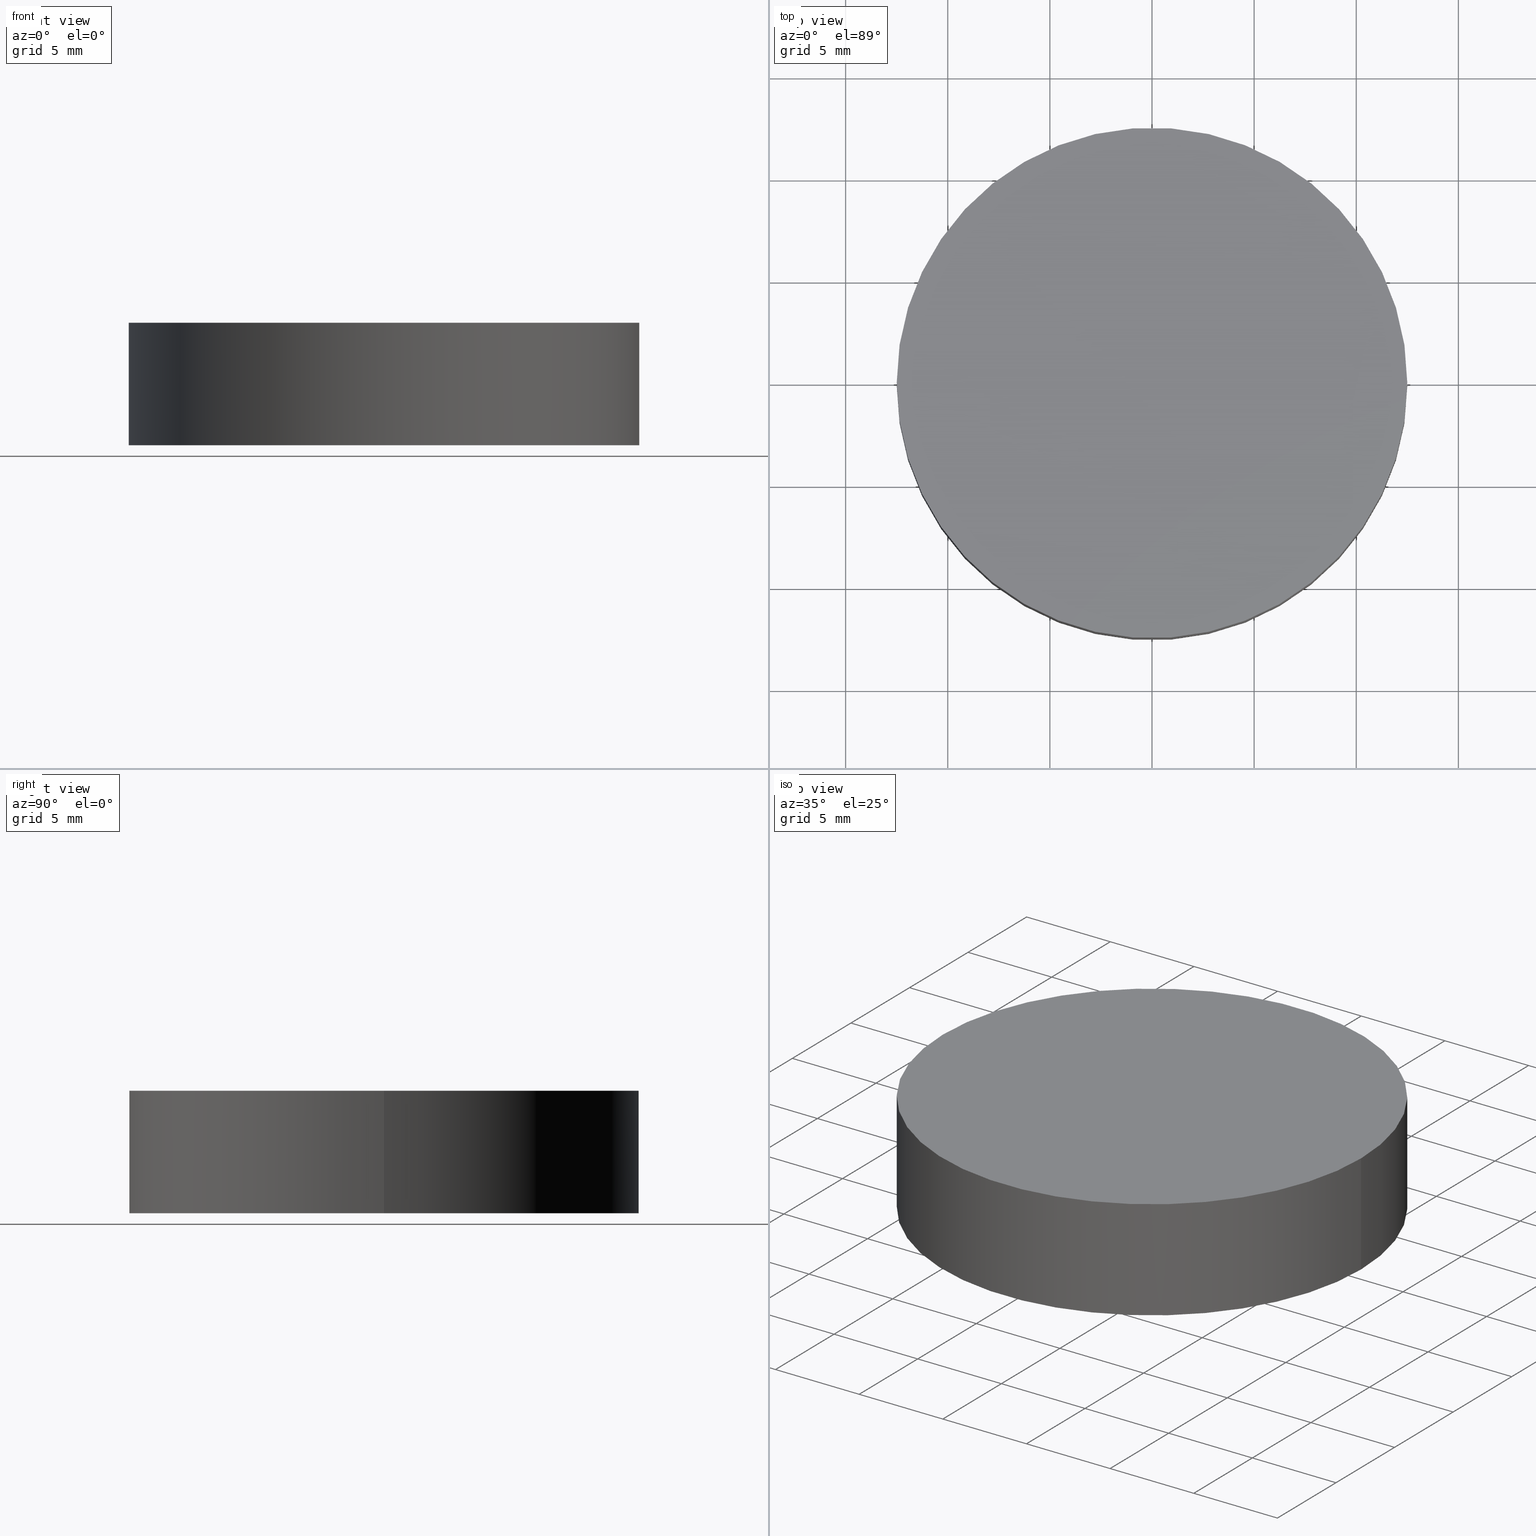
[diagram: canonical four-view strip — front | top / right | iso, engineering-drawing reading convention]
A machine part, canonical four-view strip (front | top / right | iso — engineering-drawing reading convention). The complete STEP part file that produces these views, byte-faithful:
ISO-10303-21;
HEADER;
FILE_DESCRIPTION (( 'STEP AP214' ),
    '1' );
FILE_NAME ('185005.STEP',
    '2019-07-12T01:39:51',
    ( 'user' ),
    ( '΢���й�' ),
    'SwSTEP 2.0',
    'SolidWorks 2016',
    '' );
FILE_SCHEMA (( 'AUTOMOTIVE_DESIGN' ));
ENDSEC;

DATA;
#1 = SURFACE_STYLE_USAGE ( .BOTH. , #75 ) ;
#2 = ORIENTED_EDGE ( 'NONE', *, *, #48, .T. ) ;
#3 = VERTEX_POINT ( 'NONE', #18 ) ;
#4 = DIRECTION ( 'NONE',  ( 0.0000000000000000000, 0.0000000000000000000, 1.000000000000000000 ) ) ;
#5 = CARTESIAN_POINT ( 'NONE',  ( -12.50000000000000000, 0.0000000000000000000, 6.000000000000000000 ) ) ;
#6 = DIRECTION ( 'NONE',  ( 1.000000000000000000, 0.0000000000000000000, 0.0000000000000000000 ) ) ;
#7 =( NAMED_UNIT ( * ) PLANE_ANGLE_UNIT ( ) SI_UNIT ( $, .RADIAN. ) );
#8 = COLOUR_RGB ( '',1.000000000000000000, 1.000000000000000000, 1.000000000000000000 ) ;
#9 = ORIENTED_EDGE ( 'NONE', *, *, #71, .F. ) ;
#10 = AXIS2_PLACEMENT_3D ( 'NONE', #25, #122, #109 ) ;
#11 = VECTOR ( 'NONE', #77, 1000.000000000000000 ) ;
#12 = STYLED_ITEM ( 'NONE', ( #53 ), #28 ) ;
#13 = ORIENTED_EDGE ( 'NONE', *, *, #71, .T. ) ;
#14 = FILL_AREA_STYLE ('',( #99 ) ) ;
#15 = AXIS2_PLACEMENT_3D ( 'NONE', #111, #57, #125 ) ;
#16 = CARTESIAN_POINT ( 'NONE',  ( 0.0000000000000000000, 0.0000000000000000000, 0.0000000000000000000 ) ) ;
#17 = CARTESIAN_POINT ( 'NONE',  ( 12.50000000000000000, 1.530808498934191500E-015, 6.000000000000000000 ) ) ;
#18 = CARTESIAN_POINT ( 'NONE',  ( -12.50000000000000000, 0.0000000000000000000, 0.0000000000000000000 ) ) ;
#19 = AXIS2_PLACEMENT_3D ( 'NONE', #76, #4, #64 ) ;
#20 = CARTESIAN_POINT ( 'NONE',  ( 0.0000000000000000000, 0.0000000000000000000, 6.000000000000000000 ) ) ;
#21 = PLANE ( 'NONE',  #15 ) ;
#22 = UNCERTAINTY_MEASURE_WITH_UNIT (LENGTH_MEASURE( 1.000000000000000100E-005 ), #82, 'distance_accuracy_value', 'NONE');
#23 = AXIS2_PLACEMENT_3D ( 'NONE', #32, #54, #120 ) ;
#24 = DIRECTION ( 'NONE',  ( 1.000000000000000000, 0.0000000000000000000, 0.0000000000000000000 ) ) ;
#25 = CARTESIAN_POINT ( 'NONE',  ( 0.0000000000000000000, 0.0000000000000000000, 6.000000000000000000 ) ) ;
#26 = SURFACE_STYLE_FILL_AREA ( #14 ) ;
#27 = CARTESIAN_POINT ( 'NONE',  ( 12.50000000000000000, 1.530808498934191500E-015, 6.000000000000000000 ) ) ;
#28 = MANIFOLD_SOLID_BREP ( '͹̨-����1', #51 ) ;
#29 = CYLINDRICAL_SURFACE ( 'NONE', #23, 12.50000000000000000 ) ;
#30 = SURFACE_STYLE_FILL_AREA ( #37 ) ;
#31 = DIRECTION ( 'NONE',  ( 0.0000000000000000000, 0.0000000000000000000, 1.000000000000000000 ) ) ;
#32 = CARTESIAN_POINT ( 'NONE',  ( 0.0000000000000000000, 0.0000000000000000000, 6.000000000000000000 ) ) ;
#33 = ORIENTED_EDGE ( 'NONE', *, *, #89, .T. ) ;
#34 = CARTESIAN_POINT ( 'NONE',  ( 0.0000000000000000000, 0.0000000000000000000, 0.0000000000000000000 ) ) ;
#35 = STYLED_ITEM ( 'NONE', ( #105 ), #129 ) ;
#36 = ADVANCED_FACE ( 'NONE', ( #108 ), #21, .F. ) ;
#37 = FILL_AREA_STYLE ('',( #66 ) ) ;
#38 = UNCERTAINTY_MEASURE_WITH_UNIT (LENGTH_MEASURE( 1.000000000000000100E-005 ), #133, 'distance_accuracy_value', 'NONE');
#39 = EDGE_LOOP ( 'NONE', ( #70, #88, #69, #65 ) ) ;
#40 = PRESENTATION_LAYER_ASSIGNMENT (  '', '', ( #35 ) ) ;
#41 =( NAMED_UNIT ( * ) SI_UNIT ( $, .STERADIAN. ) SOLID_ANGLE_UNIT ( ) );
#42 =( NAMED_UNIT ( * ) SI_UNIT ( $, .STERADIAN. ) SOLID_ANGLE_UNIT ( ) );
#43 = CARTESIAN_POINT ( 'NONE',  ( -12.50000000000000000, 0.0000000000000000000, 6.000000000000000000 ) ) ;
#44 = CIRCLE ( 'NONE', #127, 12.50000000000000000 ) ;
#45 = CIRCLE ( 'NONE', #110, 12.50000000000000000 ) ;
#46 = MECHANICAL_DESIGN_GEOMETRIC_PRESENTATION_REPRESENTATION (  '', ( #35 ), #56 ) ;
#47 = EDGE_LOOP ( 'NONE', ( #9, #86 ) ) ;
#48 = EDGE_CURVE ( 'NONE', #121, #126, #128, .T. ) ;
#49 =( NAMED_UNIT ( * ) PLANE_ANGLE_UNIT ( ) SI_UNIT ( $, .RADIAN. ) );
#50 = MECHANICAL_DESIGN_GEOMETRIC_PRESENTATION_REPRESENTATION (  '', ( #12 ), #116 ) ;
#51 = CLOSED_SHELL ( 'NONE', ( #80, #136, #92, #36 ) ) ;
#52 = DIRECTION ( 'NONE',  ( 1.000000000000000000, 0.0000000000000000000, 0.0000000000000000000 ) ) ;
#53 = PRESENTATION_STYLE_ASSIGNMENT (( #78 ) ) ;
#54 = DIRECTION ( 'NONE',  ( -0.0000000000000000000, -0.0000000000000000000, -1.000000000000000000 ) ) ;
#55 = PLANE ( 'NONE',  #10 ) ;
#56 =( GEOMETRIC_REPRESENTATION_CONTEXT ( 3 ) GLOBAL_UNCERTAINTY_ASSIGNED_CONTEXT ( ( #38 ) ) GLOBAL_UNIT_ASSIGNED_CONTEXT ( ( #133, #49, #41 ) ) REPRESENTATION_CONTEXT ( 'NONE', 'WORKASPACE' ) );
#57 = DIRECTION ( 'NONE',  ( 0.0000000000000000000, 0.0000000000000000000, 1.000000000000000000 ) ) ;
#58 = LINE ( 'NONE', #17, #11 ) ;
#59 = ORIENTED_EDGE ( 'NONE', *, *, #96, .F. ) ;
#60 = EDGE_LOOP ( 'NONE', ( #90, #2 ) ) ;
#61 = SHAPE_DEFINITION_REPRESENTATION ( #74, #129 ) ;
#62 = CIRCLE ( 'NONE', #19, 12.50000000000000000 ) ;
#63 = CARTESIAN_POINT ( 'NONE',  ( 0.0000000000000000000, 0.0000000000000000000, 0.0000000000000000000 ) ) ;
#64 = DIRECTION ( 'NONE',  ( 1.000000000000000000, 0.0000000000000000000, 0.0000000000000000000 ) ) ;
#65 = ORIENTED_EDGE ( 'NONE', *, *, #89, .F. ) ;
#66 = FILL_AREA_STYLE_COLOUR ( '', #8 ) ;
#67 = CARTESIAN_POINT ( 'NONE',  ( 0.0000000000000000000, 0.0000000000000000000, 6.000000000000000000 ) ) ;
#68 =( NAMED_UNIT ( * ) SI_UNIT ( $, .STERADIAN. ) SOLID_ANGLE_UNIT ( ) );
#69 = ORIENTED_EDGE ( 'NONE', *, *, #83, .T. ) ;
#70 = ORIENTED_EDGE ( 'NONE', *, *, #48, .F. ) ;
#71 = EDGE_CURVE ( 'NONE', #3, #114, #45, .T. ) ;
#72 = LINE ( 'NONE', #43, #95 ) ;
#73 = EDGE_LOOP ( 'NONE', ( #59, #139, #33, #13 ) ) ;
#74 = PRODUCT_DEFINITION_SHAPE ( 'NONE', 'NONE',  #113 ) ;
#75 = SURFACE_SIDE_STYLE ('',( #26 ) ) ;
#76 = CARTESIAN_POINT ( 'NONE',  ( 0.0000000000000000000, 0.0000000000000000000, 6.000000000000000000 ) ) ;
#77 = DIRECTION ( 'NONE',  ( -0.0000000000000000000, -0.0000000000000000000, -1.000000000000000000 ) ) ;
#78 = SURFACE_STYLE_USAGE ( .BOTH. , #102 ) ;
#79 = DIRECTION ( 'NONE',  ( 0.0000000000000000000, 0.0000000000000000000, 1.000000000000000000 ) ) ;
#80 = ADVANCED_FACE ( 'NONE', ( #103 ), #132, .T. ) ;
#81 = UNCERTAINTY_MEASURE_WITH_UNIT (LENGTH_MEASURE( 1.000000000000000100E-005 ), #134, 'distance_accuracy_value', 'NONE');
#82 =( LENGTH_UNIT ( ) NAMED_UNIT ( * ) SI_UNIT ( .MILLI., .METRE. ) );
#83 = EDGE_CURVE ( 'NONE', #114, #3, #44, .T. ) ;
#84 = APPLICATION_PROTOCOL_DEFINITION ( 'draft international standard', 'automotive_design', 1998, #85 ) ;
#85 = APPLICATION_CONTEXT ( 'automotive_design' ) ;
#86 = ORIENTED_EDGE ( 'NONE', *, *, #83, .F. ) ;
#87 = APPLICATION_CONTEXT ( 'automotive_design' ) ;
#88 = ORIENTED_EDGE ( 'NONE', *, *, #96, .T. ) ;
#89 = EDGE_CURVE ( 'NONE', #126, #3, #72, .T. ) ;
#90 = ORIENTED_EDGE ( 'NONE', *, *, #137, .T. ) ;
#91 = DIRECTION ( 'NONE',  ( 1.000000000000000000, 0.0000000000000000000, 0.0000000000000000000 ) ) ;
#92 = ADVANCED_FACE ( 'NONE', ( #106 ), #55, .T. ) ;
#93 = DIRECTION ( 'NONE',  ( -0.0000000000000000000, -0.0000000000000000000, -1.000000000000000000 ) ) ;
#94 = PRESENTATION_LAYER_ASSIGNMENT (  '', '', ( #12 ) ) ;
#95 = VECTOR ( 'NONE', #124, 1000.000000000000000 ) ;
#96 = EDGE_CURVE ( 'NONE', #121, #114, #58, .T. ) ;
#97 = DIRECTION ( 'NONE',  ( 0.0000000000000000000, 0.0000000000000000000, 1.000000000000000000 ) ) ;
#98 = APPLICATION_PROTOCOL_DEFINITION ( 'draft international standard', 'automotive_design', 1998, #87 ) ;
#99 = FILL_AREA_STYLE_COLOUR ( '', #131 ) ;
#100 = CARTESIAN_POINT ( 'NONE',  ( 12.50000000000000000, 1.530808498934191500E-015, 0.0000000000000000000 ) ) ;
#101 = DIRECTION ( 'NONE',  ( 0.0000000000000000000, 0.0000000000000000000, 1.000000000000000000 ) ) ;
#102 = SURFACE_SIDE_STYLE ('',( #30 ) ) ;
#103 = FACE_OUTER_BOUND ( 'NONE', #39, .T. ) ;
#104 = AXIS2_PLACEMENT_3D ( 'NONE', #16, #97, #24 ) ;
#105 = PRESENTATION_STYLE_ASSIGNMENT (( #1 ) ) ;
#106 = FACE_OUTER_BOUND ( 'NONE', #60, .T. ) ;
#107 = PRODUCT_CONTEXT ( 'NONE', #87, 'mechanical' ) ;
#108 = FACE_OUTER_BOUND ( 'NONE', #47, .T. ) ;
#109 = DIRECTION ( 'NONE',  ( 1.000000000000000000, 0.0000000000000000000, -0.0000000000000000000 ) ) ;
#110 = AXIS2_PLACEMENT_3D ( 'NONE', #63, #31, #52 ) ;
#111 = CARTESIAN_POINT ( 'NONE',  ( 0.0000000000000000000, 0.0000000000000000000, 0.0000000000000000000 ) ) ;
#112 = FACE_OUTER_BOUND ( 'NONE', #73, .T. ) ;
#113 = PRODUCT_DEFINITION ( 'δ֪', '', #118, #138 ) ;
#114 = VERTEX_POINT ( 'NONE', #100 ) ;
#115 = DIRECTION ( 'NONE',  ( -1.000000000000000000, 0.0000000000000000000, 0.0000000000000000000 ) ) ;
#116 =( GEOMETRIC_REPRESENTATION_CONTEXT ( 3 ) GLOBAL_UNCERTAINTY_ASSIGNED_CONTEXT ( ( #22 ) ) GLOBAL_UNIT_ASSIGNED_CONTEXT ( ( #82, #7, #68 ) ) REPRESENTATION_CONTEXT ( 'NONE', 'WORKASPACE' ) );
#117 =( NAMED_UNIT ( * ) PLANE_ANGLE_UNIT ( ) SI_UNIT ( $, .RADIAN. ) );
#118 = PRODUCT_DEFINITION_FORMATION_WITH_SPECIFIED_SOURCE ( '�κ�', '', #119, .NOT_KNOWN. ) ;
#119 = PRODUCT ( '185005', '185005', '', ( #107 ) ) ;
#120 = DIRECTION ( 'NONE',  ( -1.000000000000000000, 0.0000000000000000000, 0.0000000000000000000 ) ) ;
#121 = VERTEX_POINT ( 'NONE', #27 ) ;
#122 = DIRECTION ( 'NONE',  ( 0.0000000000000000000, 0.0000000000000000000, 1.000000000000000000 ) ) ;
#123 = AXIS2_PLACEMENT_3D ( 'NONE', #20, #79, #6 ) ;
#124 = DIRECTION ( 'NONE',  ( -0.0000000000000000000, -0.0000000000000000000, -1.000000000000000000 ) ) ;
#125 = DIRECTION ( 'NONE',  ( 1.000000000000000000, 0.0000000000000000000, -0.0000000000000000000 ) ) ;
#126 = VERTEX_POINT ( 'NONE', #5 ) ;
#127 = AXIS2_PLACEMENT_3D ( 'NONE', #34, #101, #91 ) ;
#128 = CIRCLE ( 'NONE', #123, 12.50000000000000000 ) ;
#129 = ADVANCED_BREP_SHAPE_REPRESENTATION ( '185005', ( #28, #104 ), #140 ) ;
#130 = PRODUCT_RELATED_PRODUCT_CATEGORY ( 'part', '', ( #119 ) ) ;
#131 = COLOUR_RGB ( '',1.000000000000000000, 1.000000000000000000, 1.000000000000000000 ) ;
#132 = CYLINDRICAL_SURFACE ( 'NONE', #135, 12.50000000000000000 ) ;
#133 =( LENGTH_UNIT ( ) NAMED_UNIT ( * ) SI_UNIT ( .MILLI., .METRE. ) );
#134 =( LENGTH_UNIT ( ) NAMED_UNIT ( * ) SI_UNIT ( .MILLI., .METRE. ) );
#135 = AXIS2_PLACEMENT_3D ( 'NONE', #67, #93, #115 ) ;
#136 = ADVANCED_FACE ( 'NONE', ( #112 ), #29, .T. ) ;
#137 = EDGE_CURVE ( 'NONE', #126, #121, #62, .T. ) ;
#138 = PRODUCT_DEFINITION_CONTEXT ( 'detailed design', #85, 'design' ) ;
#139 = ORIENTED_EDGE ( 'NONE', *, *, #137, .F. ) ;
#140 =( GEOMETRIC_REPRESENTATION_CONTEXT ( 3 ) GLOBAL_UNCERTAINTY_ASSIGNED_CONTEXT ( ( #81 ) ) GLOBAL_UNIT_ASSIGNED_CONTEXT ( ( #134, #117, #42 ) ) REPRESENTATION_CONTEXT ( 'NONE', 'WORKASPACE' ) );
ENDSEC;
END-ISO-10303-21;
